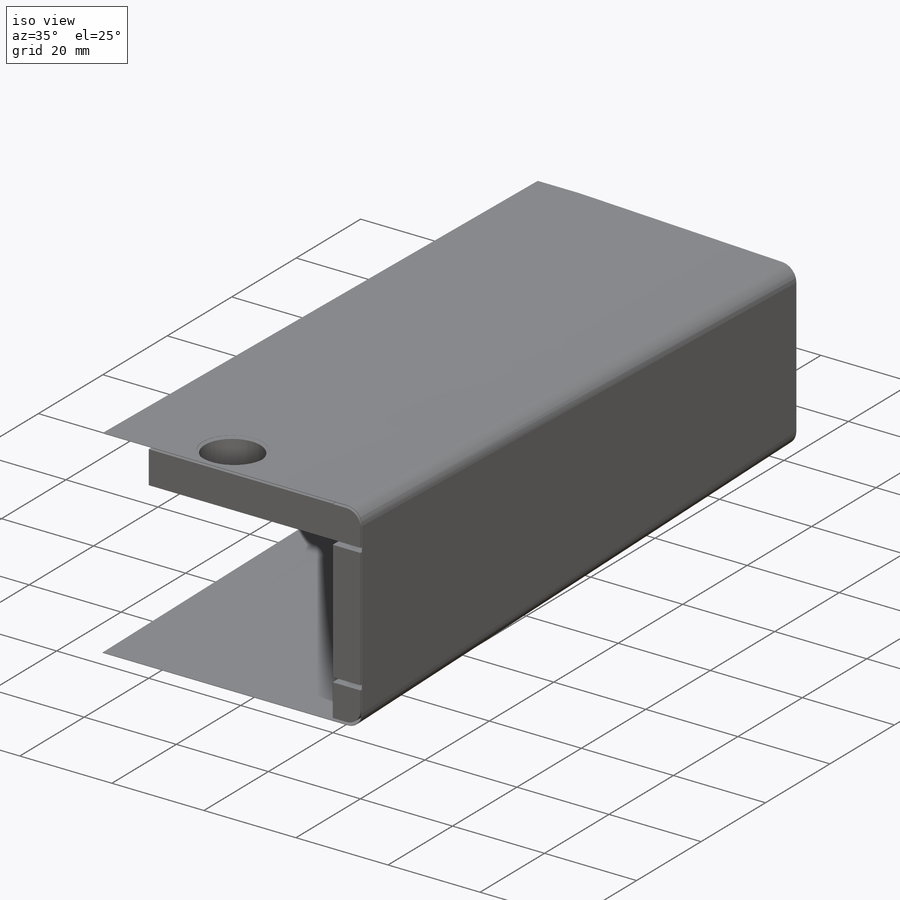
[diagram: iso view]
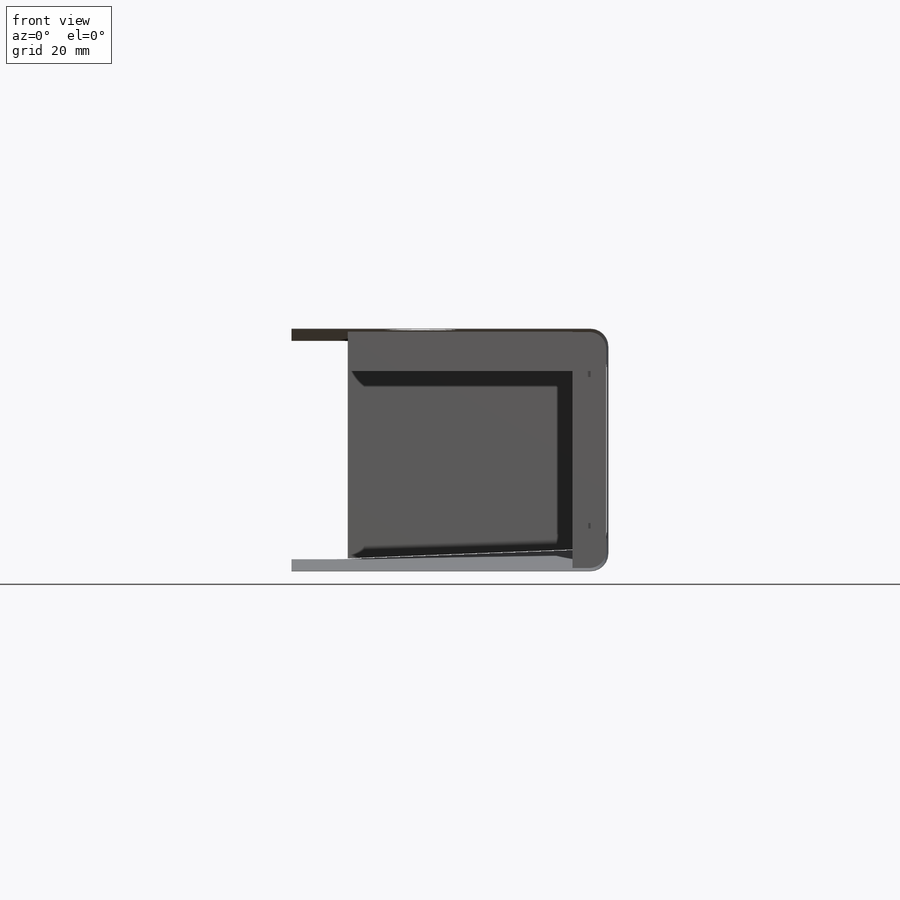
[diagram: front view]
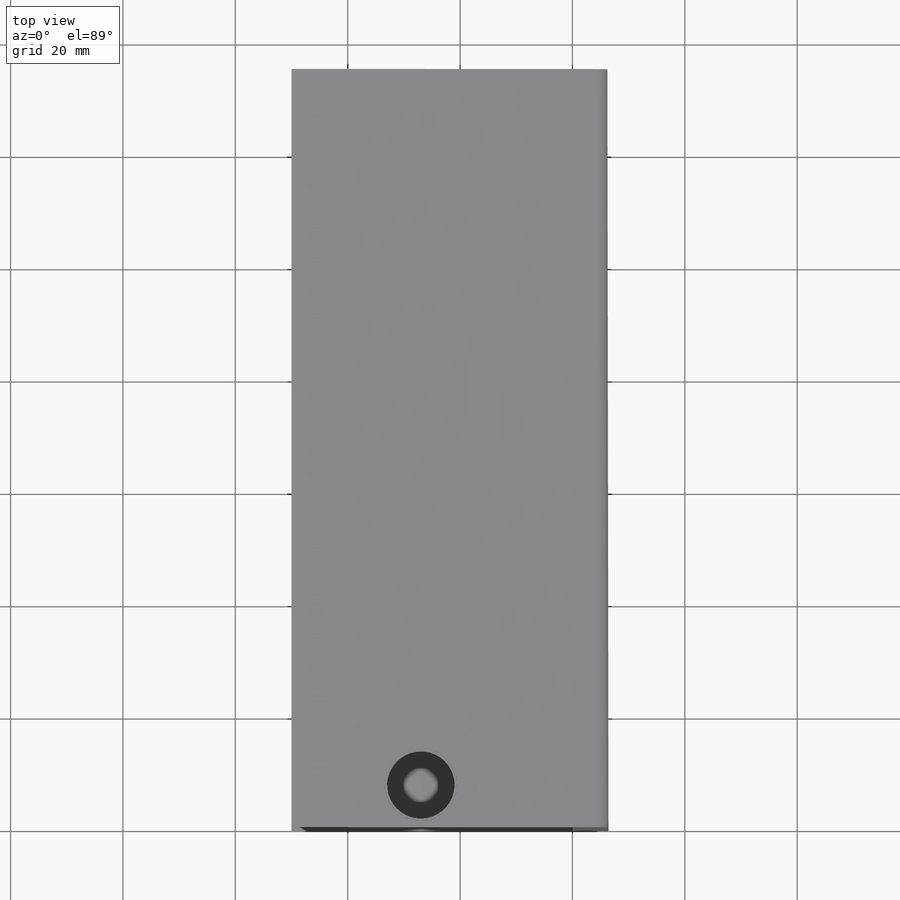
[diagram: top view]
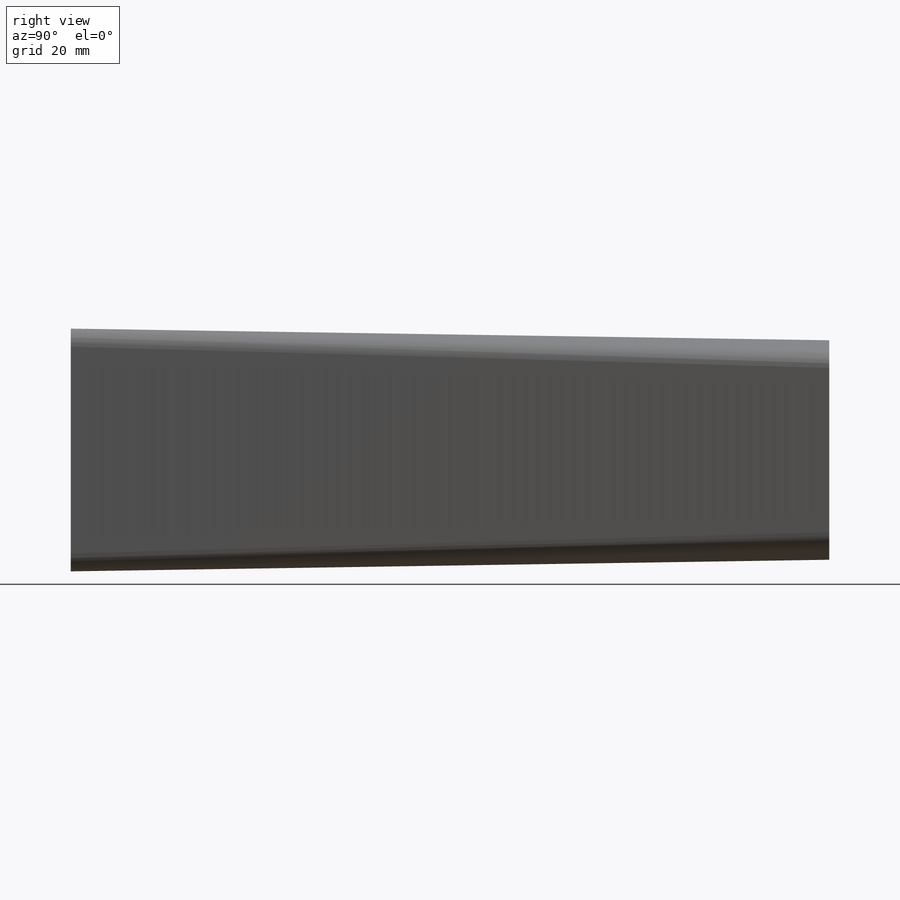
[diagram: right view]
SOLIDWORKS PART (.sldprt)
format: sldprt  version: not decoded by parser v0  size: 432,128 bytes
history: native  units: mm
features: sketch x8, extrude x3, cut_extrude x2, material x1, plane x1, fillet x1 (+12 scaffold rows collapsed)
feature tree (28):
  scaffold x12  (default folders/planes/origin — collapsed)
  material  "Material <not specified>"
  sketch  "Sketch1"  dims[D1=1.0mm D2=5.0mm D3=42.0mm D4=26.0mm D5=30.0mm D6=100.0mm D7=10.0mm]
  extrude  "Extrude1"  Depth=6mm
  sketch  "Sketch3"  dims[D1=6.0mm D2=42.0mm D3=30.0mm D4=454.0mm]
  plane  "Plane1"  Offset=135mm
  sketch  "Sketch2"  dims[D1=40.0mm D2=45.0mm D3=40.0mm D4=35.0mm]
  extrude  "Extrude2"  Depth=6mm
  sketch  "Sketch5"  dims[D1=30.0mm]
  extrude  "Extrude3"  [1 undecoded]
  sketch  "Sketch6"  dims[D3=12.0mm D1=11.0mm D2=20.0mm D4=7.5mm D5=13.0mm]
  cut_extrude  "Cut-Extrude1"  [1 undecoded]
  fillet  "Fillet2"  Radius=3mm
  sketch  "Sketch7"  dims[D3=50.0mm D2=10.0mm D1=0.1mm D4=0.1mm]
  sketch  "Sketch8"  dims[c1.D4=3.1mm c1.D3=10.0mm c1.D5=0.5mm c1.D6=0.5mm c1.D1=0.3mm c1.D2=0.1mm c2.D1=5.0mm c2.D0=3.0mm c2.D2=3.0mm c2.D3=3.5mm]
  sketch  "Sketch9"  dims[D1=13.0mm]
  cut_extrude  "Cut-Extrude2"  [1 undecoded]
decode coverage: 11 of 14 modeling features carry decoded parameters
note: 3 parameter values undecoded
summary: no parameter record found for 3 features
note: suppression state not decoded; provenance and decode notes live in map.json
